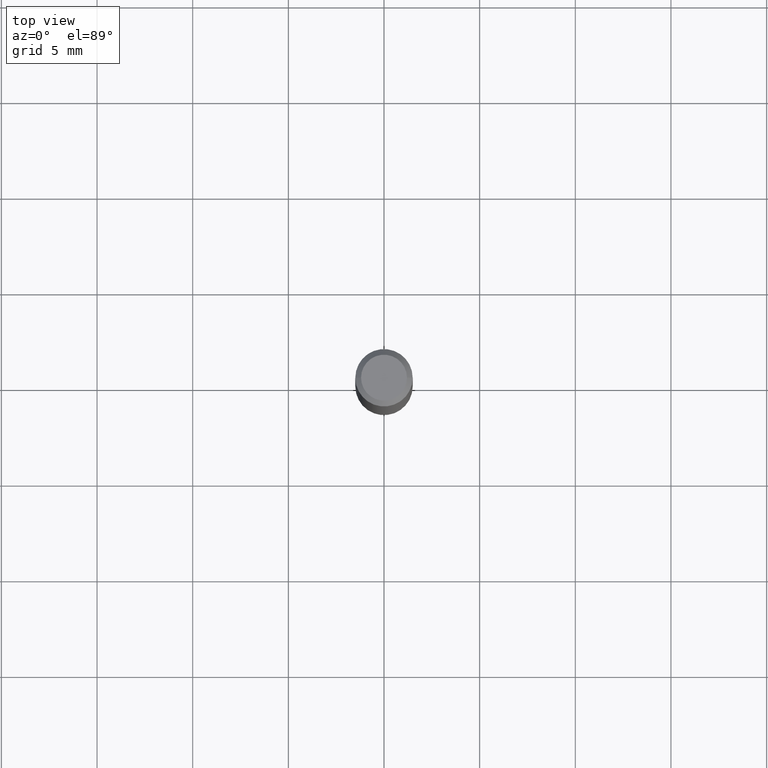
[diagram: clean part render]
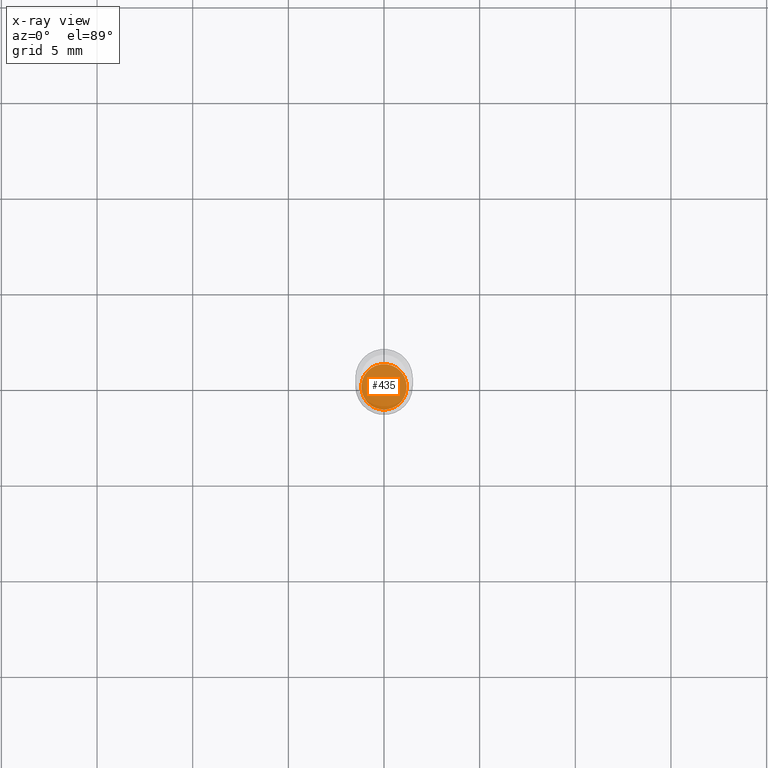
[diagram: x-ray — body ghosted, one internal face saturated and labeled with its STEP entity id]
A machine part, top view, then the same camera in x-ray: the body is ghosted and one INTERNAL B-rep face — a face not visible from any outside direction — is saturated and labeled: STEP entity #435.
In plain terms, the highlighted planar face has unit normal (-0, 0, 1).
Its self-contained STEP definition (entity closure, byte-faithful):
#27 = CARTESIAN_POINT ( 'NONE',  ( 2.676565608369631794E-29, -3.821426325363822773E-15, -1.094499999999999806 ) ) ;
#43 = EDGE_LOOP ( 'NONE', ( #389, #46 ) ) ;
#46 = ORIENTED_EDGE ( 'NONE', *, *, #381, .F. ) ;
#53 = CARTESIAN_POINT ( 'NONE',  ( 0.04674999999999999295, -4.147879830545655774E-15, -1.094499999999999806 ) ) ;
#69 = CARTESIAN_POINT ( 'NONE',  ( 2.676565608369631794E-29, -3.821426325363822773E-15, -1.094499999999999806 ) ) ;
#83 = CARTESIAN_POINT ( 'NONE',  ( 2.676565608369631794E-29, -3.821426325363822773E-15, -1.094499999999999806 ) ) ;
#89 = EDGE_CURVE ( 'NONE', #192, #448, #340, .T. ) ;
#107 = DIRECTION ( 'NONE',  ( 1.000000000000000000, -6.982962677686265922E-15, 4.876176775795935793E-29 ) ) ;
#149 = FACE_OUTER_BOUND ( 'NONE', #43, .T. ) ;
#163 = DIRECTION ( 'NONE',  ( 1.000000000000000000, -6.982962677686266711E-15, 0.000000000000000000 ) ) ;
#173 = AXIS2_PLACEMENT_3D ( 'NONE', #69, #447, #375 ) ;
#192 = VERTEX_POINT ( 'NONE', #53 ) ;
#232 = AXIS2_PLACEMENT_3D ( 'NONE', #83, #387, #163 ) ;
#311 = CARTESIAN_POINT ( 'NONE',  ( -0.04674999999999999295, -3.486598369221864243E-15, -1.094499999999999806 ) ) ;
#340 = CIRCLE ( 'NONE', #232, 0.04674999999999999295 ) ;
#365 = AXIS2_PLACEMENT_3D ( 'NONE', #27, #484, #107 ) ;
#375 = DIRECTION ( 'NONE',  ( 1.000000000000000000, -6.982962677686266711E-15, 0.000000000000000000 ) ) ;
#381 = EDGE_CURVE ( 'NONE', #448, #192, #384, .T. ) ;
#384 = CIRCLE ( 'NONE', #173, 0.04674999999999999295 ) ;
#387 = DIRECTION ( 'NONE',  ( -2.445468806185136597E-29, 3.491481338843145583E-15, 1.000000000000000000 ) ) ;
#389 = ORIENTED_EDGE ( 'NONE', *, *, #89, .F. ) ;
#435 = ADVANCED_FACE ( 'NONE', ( #149 ), #483, .F. ) ;
#447 = DIRECTION ( 'NONE',  ( -2.445468806185136597E-29, 3.491481338843145583E-15, 1.000000000000000000 ) ) ;
#448 = VERTEX_POINT ( 'NONE', #311 ) ;
#483 = PLANE ( 'NONE',  #365 ) ;
#484 = DIRECTION ( 'NONE',  ( -2.438088387897960049E-29, 3.491481338843145188E-15, 1.000000000000000000 ) ) ;